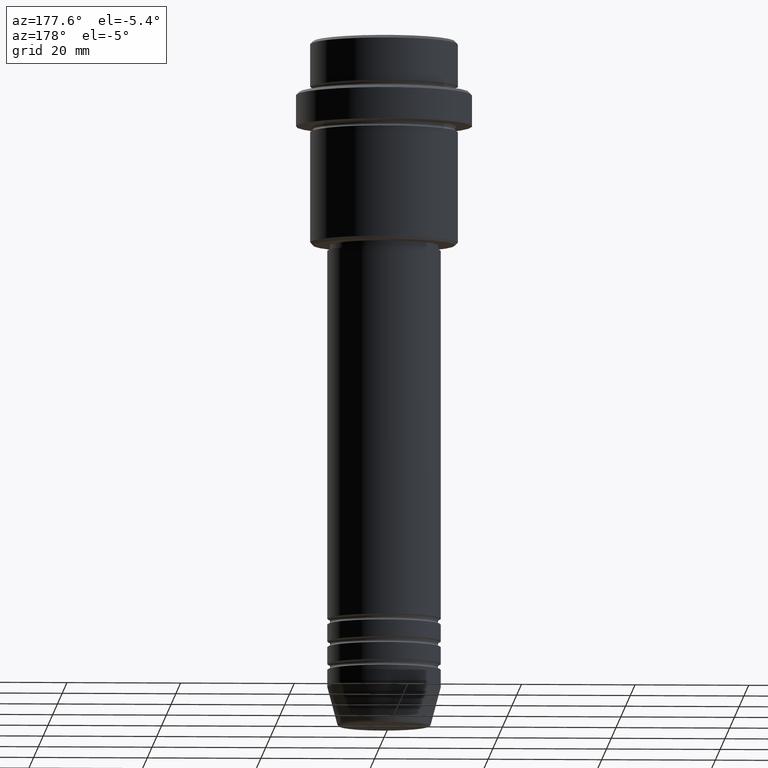
[diagram: clean part render]
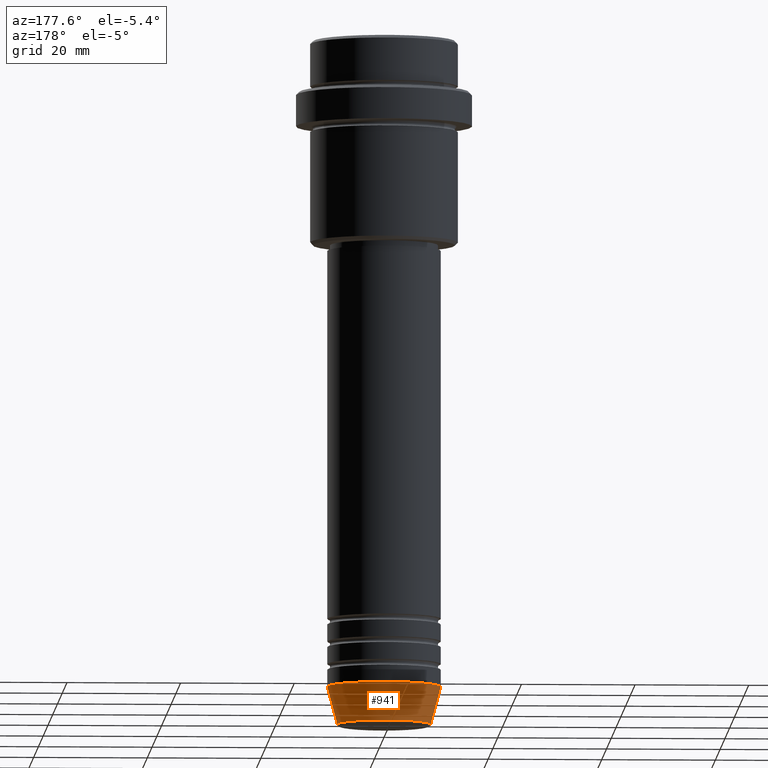
[diagram: same view with one face highlighted and labeled with its STEP entity id]
A machine part, auxiliary view. The second image highlights one B-rep face of the part: STEP entity #941.
In plain terms, the highlighted conical surface has half-angle 15 deg.
Its self-contained STEP definition (entity closure, byte-faithful):
#62 = CARTESIAN_POINT ( 'NONE',  ( 10.00000000000000000, 0.000000000000000000, -114.0000000000000000 ) ) ;
#65 = DIRECTION ( 'NONE',  ( 1.000000000000000000, 0.000000000000000000, 0.000000000000000000 ) ) ;
#70 = CARTESIAN_POINT ( 'NONE',  ( 0.000000000000000000, 0.000000000000000000, -120.6294095225512564 ) ) ;
#83 = DIRECTION ( 'NONE',  ( -0.000000000000000000, -0.000000000000000000, 1.000000000000000000 ) ) ;
#85 = DIRECTION ( 'NONE',  ( 1.000000000000000000, 0.000000000000000000, 0.000000000000000000 ) ) ;
#91 = EDGE_LOOP ( 'NONE', ( #987, #935, #732, #234 ) ) ;
#95 = VECTOR ( 'NONE', #658, 1000.000000000000114 ) ;
#123 = AXIS2_PLACEMENT_3D ( 'NONE', #70, #511, #85 ) ;
#128 = CARTESIAN_POINT ( 'NONE',  ( 0.000000000000000000, 0.000000000000000000, -114.0000000000000000 ) ) ;
#204 = EDGE_CURVE ( 'NONE', #946, #1082, #546, .T. ) ;
#234 = ORIENTED_EDGE ( 'NONE', *, *, #536, .F. ) ;
#281 = CARTESIAN_POINT ( 'NONE',  ( -8.223655072137187716, 1.115877042642912054E-15, -120.6294095225512564 ) ) ;
#330 = EDGE_CURVE ( 'NONE', #766, #946, #628, .T. ) ;
#449 = CARTESIAN_POINT ( 'NONE',  ( 8.223655072137187716, 0.000000000000000000, -120.6294095225512564 ) ) ;
#458 = CIRCLE ( 'NONE', #651, 10.00000000000000000 ) ;
#465 = CONICAL_SURFACE ( 'NONE', #1276, 10.00000000000000000, 0.2617993877991502960 ) ;
#511 = DIRECTION ( 'NONE',  ( -0.000000000000000000, -0.000000000000000000, 1.000000000000000000 ) ) ;
#536 = EDGE_CURVE ( 'NONE', #766, #1287, #854, .T. ) ;
#546 = LINE ( 'NONE', #876, #95 ) ;
#563 = DIRECTION ( 'NONE',  ( 1.000000000000000000, 0.000000000000000000, 0.000000000000000000 ) ) ;
#589 = FACE_OUTER_BOUND ( 'NONE', #91, .T. ) ;
#604 = DIRECTION ( 'NONE',  ( 0.2588190451025215166, 0.000000000000000000, 0.9659258262890679791 ) ) ;
#628 = CIRCLE ( 'NONE', #123, 8.223655072137187716 ) ;
#651 = AXIS2_PLACEMENT_3D ( 'NONE', #128, #1234, #563 ) ;
#658 = DIRECTION ( 'NONE',  ( -0.2588190451025215166, 3.169619151431774802E-17, 0.9659258262890679791 ) ) ;
#732 = ORIENTED_EDGE ( 'NONE', *, *, #1190, .F. ) ;
#766 = VERTEX_POINT ( 'NONE', #449 ) ;
#838 = CARTESIAN_POINT ( 'NONE',  ( 0.000000000000000000, 0.000000000000000000, -114.0000000000000000 ) ) ;
#854 = LINE ( 'NONE', #1191, #1105 ) ;
#876 = CARTESIAN_POINT ( 'NONE',  ( -10.00000000000000000, 1.224646799147353256E-15, -114.0000000000000000 ) ) ;
#935 = ORIENTED_EDGE ( 'NONE', *, *, #204, .T. ) ;
#941 = ADVANCED_FACE ( 'NONE', ( #589 ), #465, .T. ) ;
#946 = VERTEX_POINT ( 'NONE', #281 ) ;
#987 = ORIENTED_EDGE ( 'NONE', *, *, #330, .T. ) ;
#1082 = VERTEX_POINT ( 'NONE', #1196 ) ;
#1105 = VECTOR ( 'NONE', #604, 1000.000000000000114 ) ;
#1190 = EDGE_CURVE ( 'NONE', #1287, #1082, #458, .T. ) ;
#1191 = CARTESIAN_POINT ( 'NONE',  ( 10.00000000000000000, 0.000000000000000000, -114.0000000000000000 ) ) ;
#1196 = CARTESIAN_POINT ( 'NONE',  ( -10.00000000000000000, 1.224646799147353256E-15, -114.0000000000000000 ) ) ;
#1234 = DIRECTION ( 'NONE',  ( -0.000000000000000000, -0.000000000000000000, 1.000000000000000000 ) ) ;
#1276 = AXIS2_PLACEMENT_3D ( 'NONE', #838, #83, #65 ) ;
#1287 = VERTEX_POINT ( 'NONE', #62 ) ;